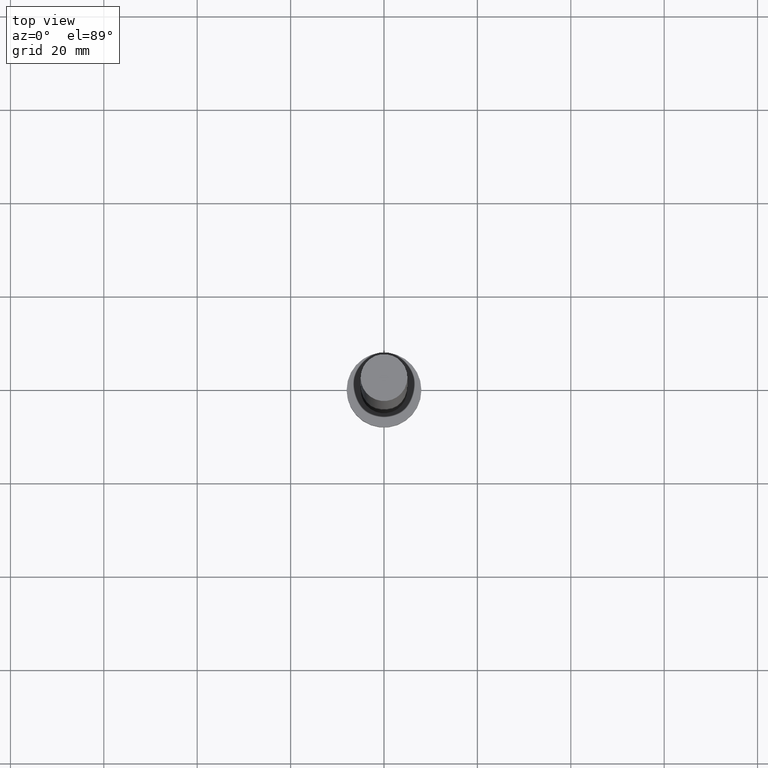
[diagram: clean part render]
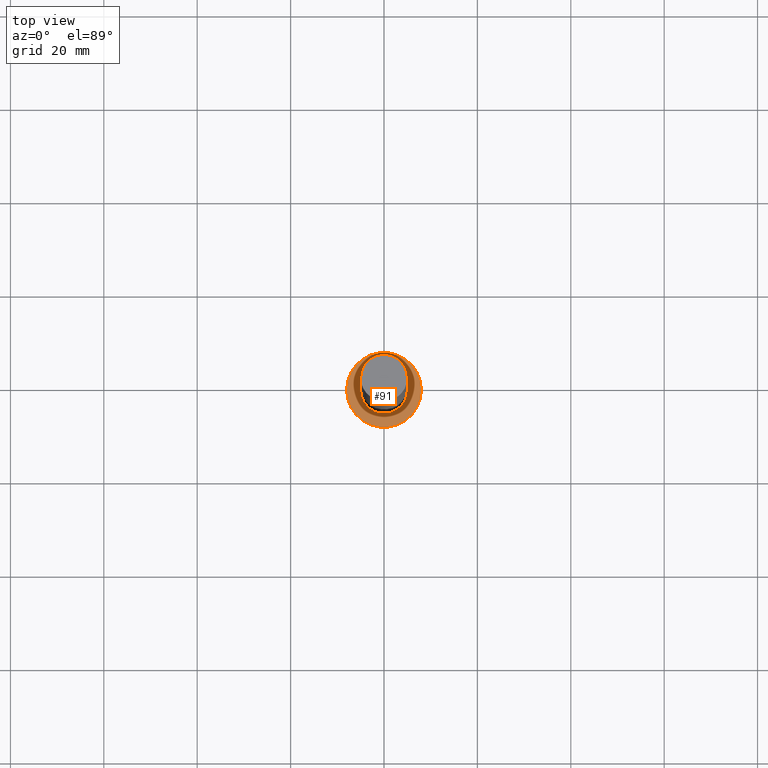
[diagram: same view with one face highlighted and labeled with its STEP entity id]
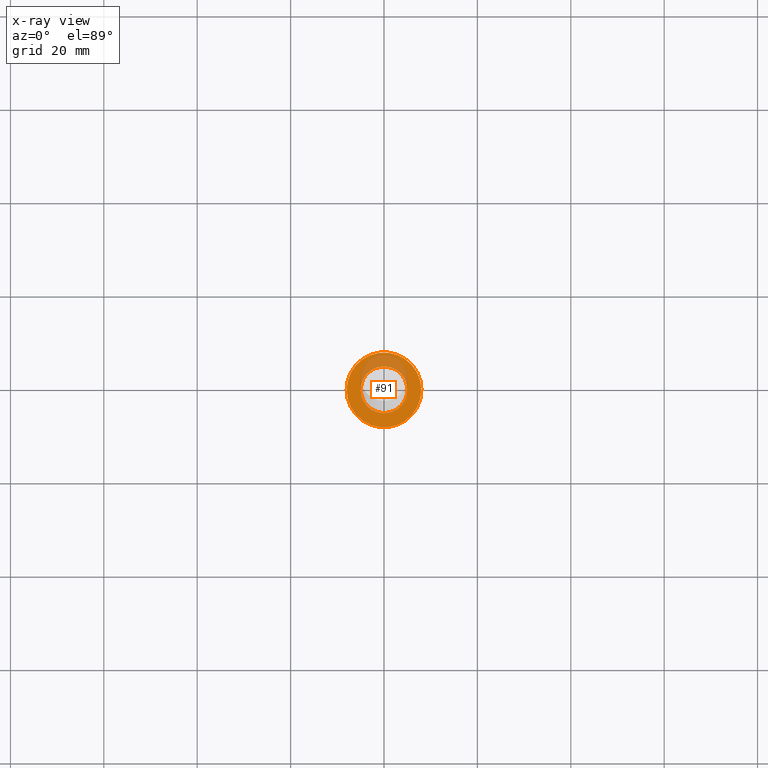
[diagram: x-ray of the same camera — body ghosted, the highlighted face saturated]
A machine part, top view. The second image highlights one B-rep face of the part: STEP entity #91.
The next image is the same camera in x-ray: the body ghosted, the highlighted face saturated — about 22% of this face is hidden behind the body in this view.
In plain terms, the highlighted planar face has unit normal (0, 0, 1).
Its self-contained STEP definition (entity closure, byte-faithful):
#2 = VERTEX_POINT ( 'NONE', #18 ) ;
#4 = DIRECTION ( 'NONE',  ( 1.000000000000000000, 0.000000000000000000, 0.000000000000000000 ) ) ;
#6 = DIRECTION ( 'NONE',  ( 0.000000000000000000, 0.000000000000000000, 1.000000000000000000 ) ) ;
#8 = CIRCLE ( 'NONE', #148, 5.000000000000000888 ) ;
#17 = AXIS2_PLACEMENT_3D ( 'NONE', #22, #6, #24 ) ;
#18 = CARTESIAN_POINT ( 'NONE',  ( -5.000000000000000888, 0.000000000000000000, 5.000000000000000000 ) ) ;
#22 = CARTESIAN_POINT ( 'NONE',  ( 0.000000000000000000, 0.000000000000000000, 5.000000000000000000 ) ) ;
#24 = DIRECTION ( 'NONE',  ( 1.000000000000000000, 0.000000000000000000, 0.000000000000000000 ) ) ;
#26 = CARTESIAN_POINT ( 'NONE',  ( 5.000000000000000888, 6.123233995736767268E-16, 5.000000000000000000 ) ) ;
#30 = ORIENTED_EDGE ( 'NONE', *, *, #196, .T. ) ;
#39 = PLANE ( 'NONE',  #138 ) ;
#44 = VERTEX_POINT ( 'NONE', #253 ) ;
#48 = DIRECTION ( 'NONE',  ( 1.000000000000000000, 0.000000000000000000, 0.000000000000000000 ) ) ;
#49 = DIRECTION ( 'NONE',  ( 1.000000000000000000, 0.000000000000000000, 0.000000000000000000 ) ) ;
#58 = CARTESIAN_POINT ( 'NONE',  ( 0.000000000000000000, 0.000000000000000000, 5.000000000000000000 ) ) ;
#65 = CIRCLE ( 'NONE', #17, 8.000000000000000000 ) ;
#83 = DIRECTION ( 'NONE',  ( 1.000000000000000000, 0.000000000000000000, -0.000000000000000000 ) ) ;
#91 = ADVANCED_FACE ( 'NONE', ( #116, #237 ), #39, .T. ) ;
#93 = DIRECTION ( 'NONE',  ( 0.000000000000000000, 0.000000000000000000, 1.000000000000000000 ) ) ;
#100 = AXIS2_PLACEMENT_3D ( 'NONE', #109, #166, #4 ) ;
#103 = EDGE_LOOP ( 'NONE', ( #173, #30 ) ) ;
#106 = CARTESIAN_POINT ( 'NONE',  ( -8.000000000000000000, 0.000000000000000000, 5.000000000000000000 ) ) ;
#109 = CARTESIAN_POINT ( 'NONE',  ( 0.000000000000000000, 0.000000000000000000, 5.000000000000000000 ) ) ;
#116 = FACE_BOUND ( 'NONE', #194, .T. ) ;
#128 = CIRCLE ( 'NONE', #100, 5.000000000000000888 ) ;
#131 = VERTEX_POINT ( 'NONE', #106 ) ;
#138 = AXIS2_PLACEMENT_3D ( 'NONE', #58, #220, #83 ) ;
#139 = ORIENTED_EDGE ( 'NONE', *, *, #171, .F. ) ;
#143 = VERTEX_POINT ( 'NONE', #26 ) ;
#148 = AXIS2_PLACEMENT_3D ( 'NONE', #165, #149, #48 ) ;
#149 = DIRECTION ( 'NONE',  ( 0.000000000000000000, 0.000000000000000000, 1.000000000000000000 ) ) ;
#165 = CARTESIAN_POINT ( 'NONE',  ( 0.000000000000000000, 0.000000000000000000, 5.000000000000000000 ) ) ;
#166 = DIRECTION ( 'NONE',  ( 0.000000000000000000, 0.000000000000000000, 1.000000000000000000 ) ) ;
#169 = ORIENTED_EDGE ( 'NONE', *, *, #254, .F. ) ;
#171 = EDGE_CURVE ( 'NONE', #143, #2, #8, .T. ) ;
#173 = ORIENTED_EDGE ( 'NONE', *, *, #184, .T. ) ;
#183 = CIRCLE ( 'NONE', #192, 8.000000000000000000 ) ;
#184 = EDGE_CURVE ( 'NONE', #131, #44, #65, .T. ) ;
#192 = AXIS2_PLACEMENT_3D ( 'NONE', #208, #93, #49 ) ;
#194 = EDGE_LOOP ( 'NONE', ( #169, #139 ) ) ;
#196 = EDGE_CURVE ( 'NONE', #44, #131, #183, .T. ) ;
#208 = CARTESIAN_POINT ( 'NONE',  ( 0.000000000000000000, 0.000000000000000000, 5.000000000000000000 ) ) ;
#220 = DIRECTION ( 'NONE',  ( 0.000000000000000000, 0.000000000000000000, 1.000000000000000000 ) ) ;
#237 = FACE_OUTER_BOUND ( 'NONE', #103, .T. ) ;
#253 = CARTESIAN_POINT ( 'NONE',  ( 8.000000000000000000, 9.797174393178825657E-16, 5.000000000000000000 ) ) ;
#254 = EDGE_CURVE ( 'NONE', #2, #143, #128, .T. ) ;